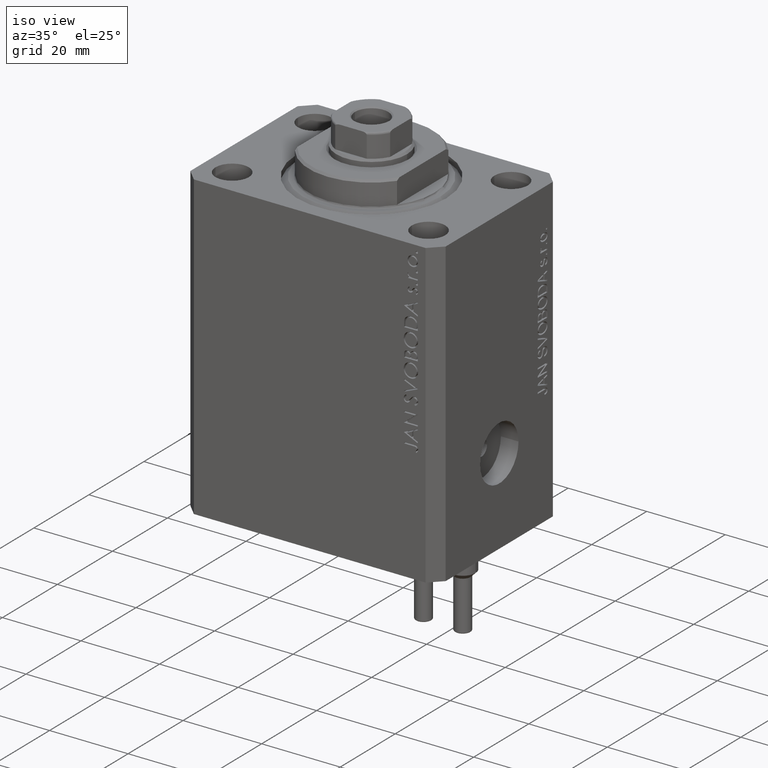
[diagram: clean part render]
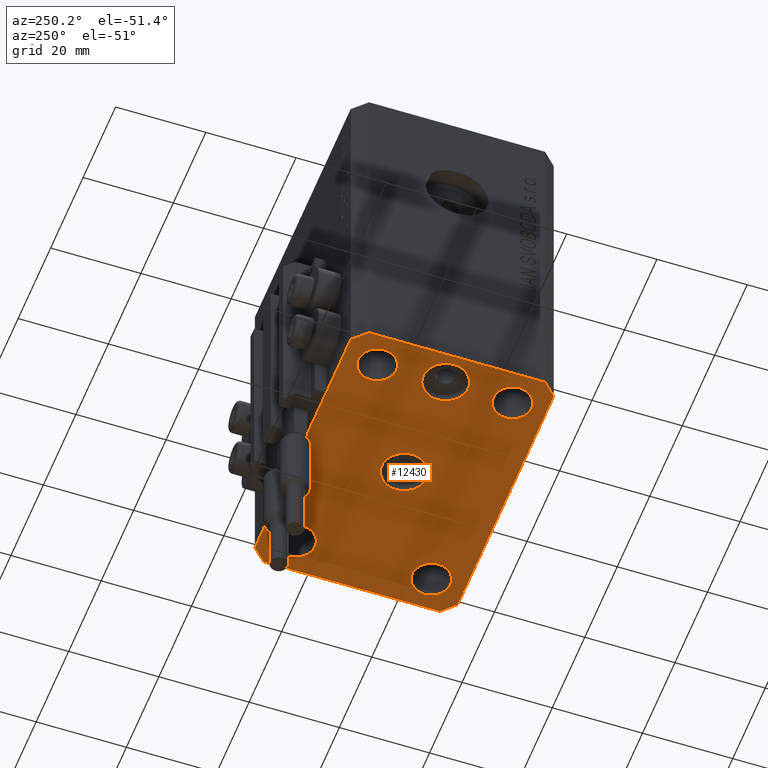
[diagram: tour spotlight — one face highlighted and labeled with its STEP entity id]
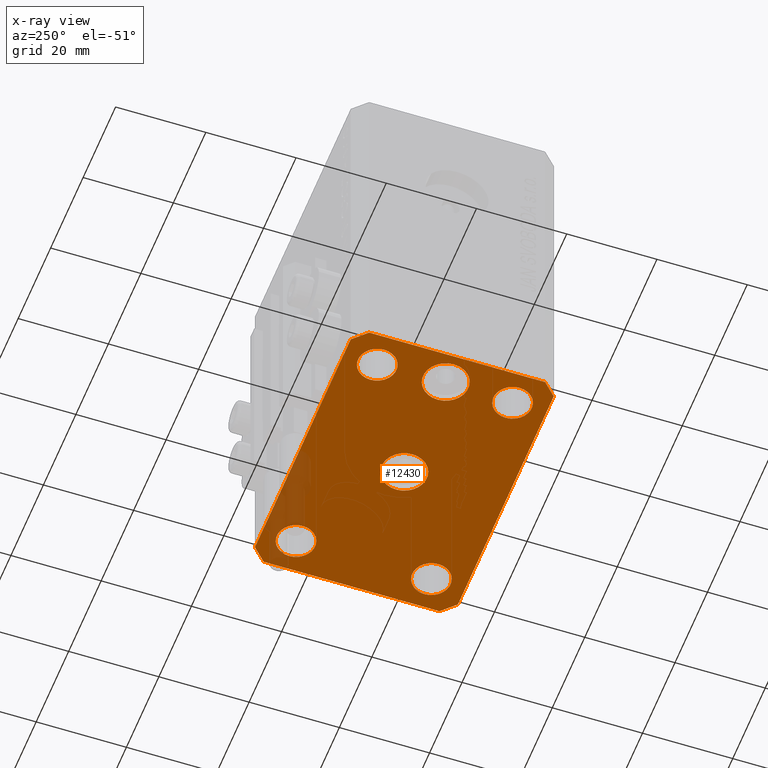
[diagram: x-ray of the same camera — body ghosted, this tour face saturated]
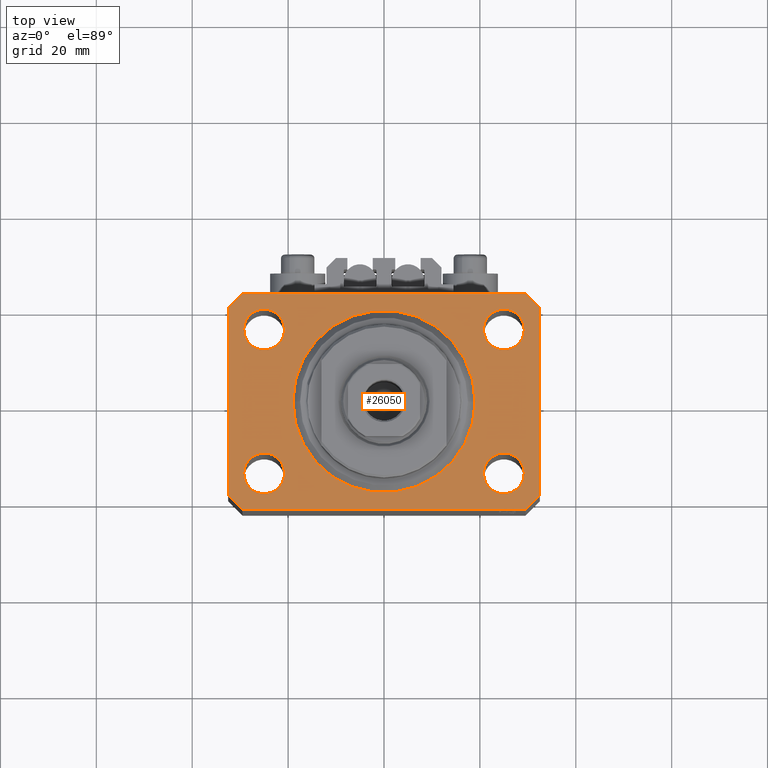
[diagram: tour spotlight — one face highlighted and labeled with its STEP entity id]
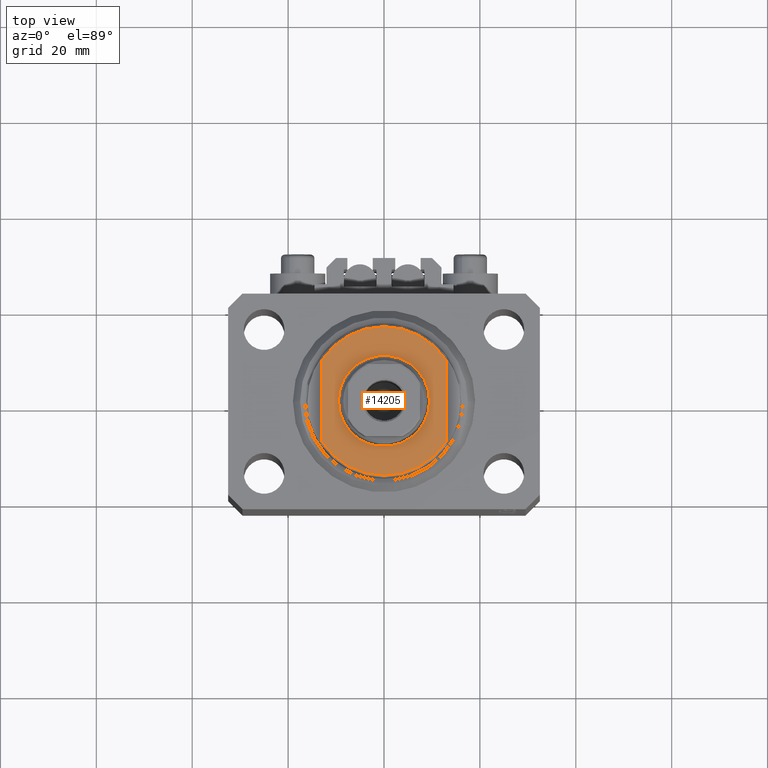
[diagram: tour spotlight — one face highlighted and labeled with its STEP entity id]
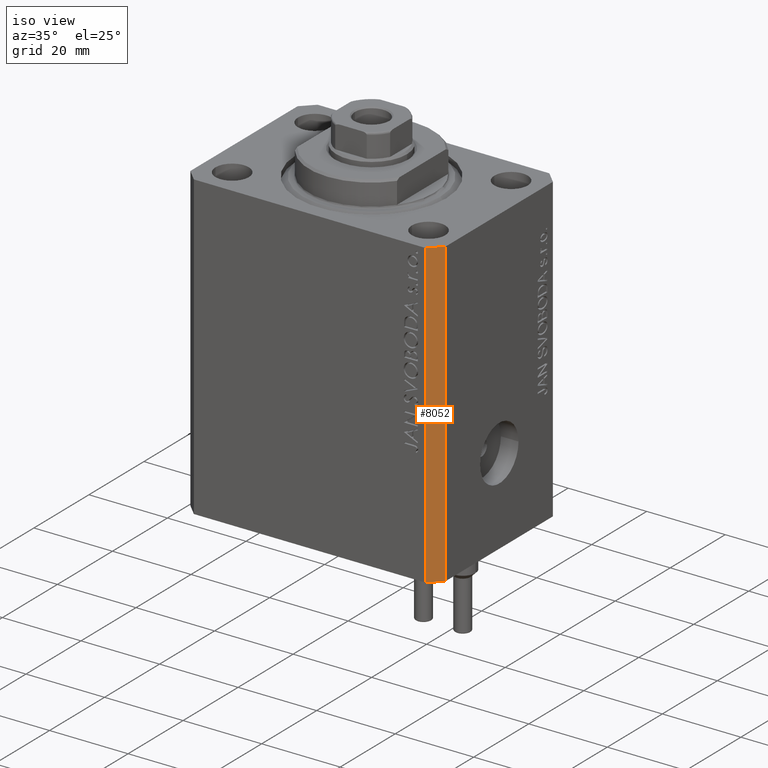
[diagram: tour spotlight — one face highlighted and labeled with its STEP entity id]
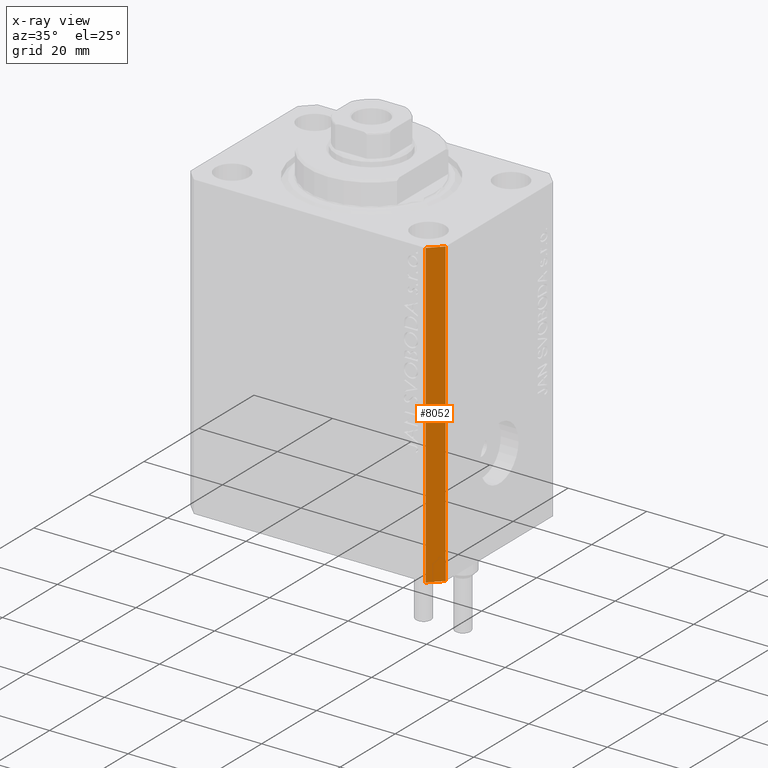
[diagram: x-ray of the same camera — body ghosted, this tour face saturated]
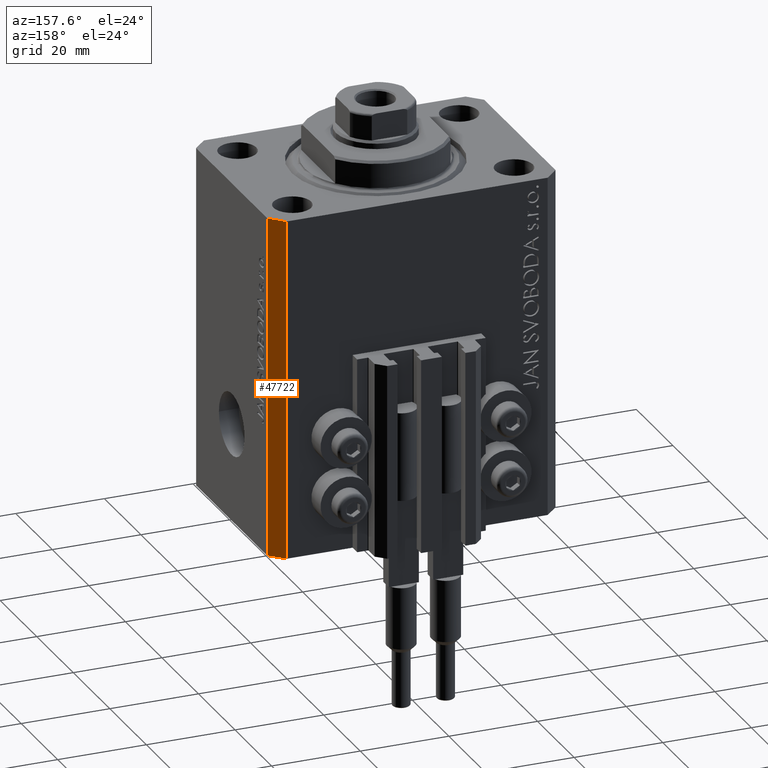
[diagram: tour spotlight — one face highlighted and labeled with its STEP entity id]
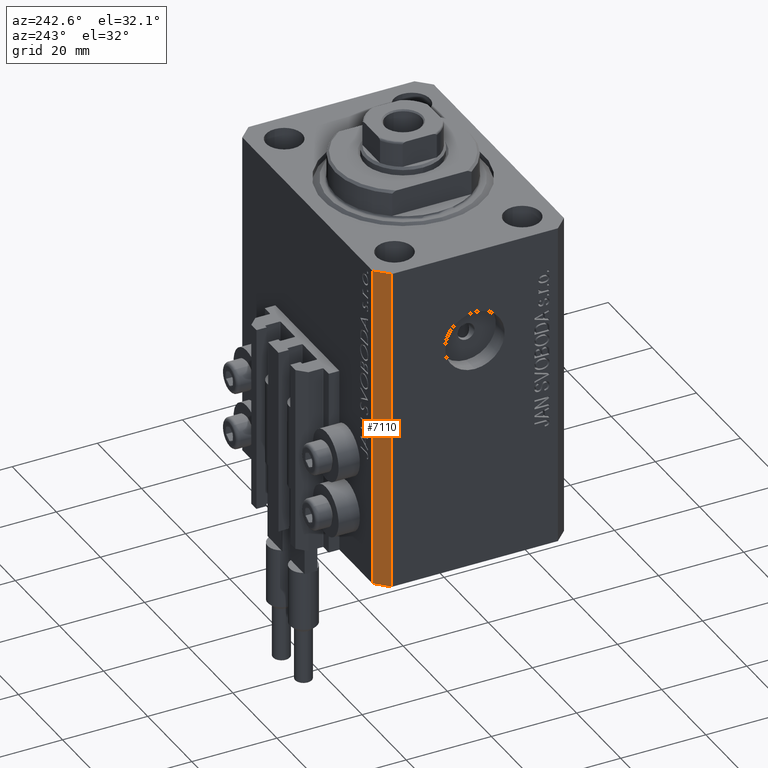
[diagram: tour spotlight — one face highlighted and labeled with its STEP entity id]
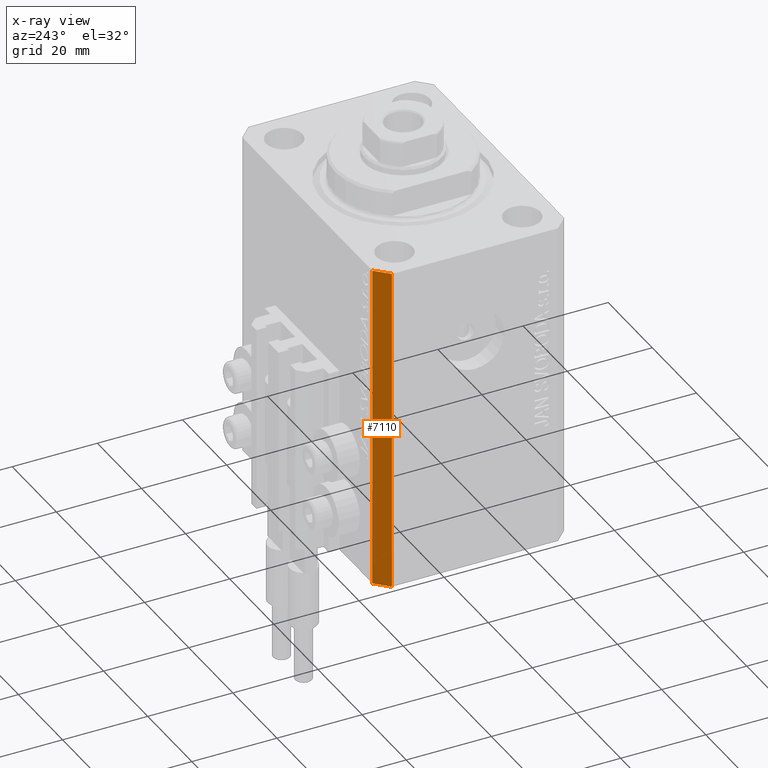
[diagram: x-ray of the same camera — body ghosted, this tour face saturated]
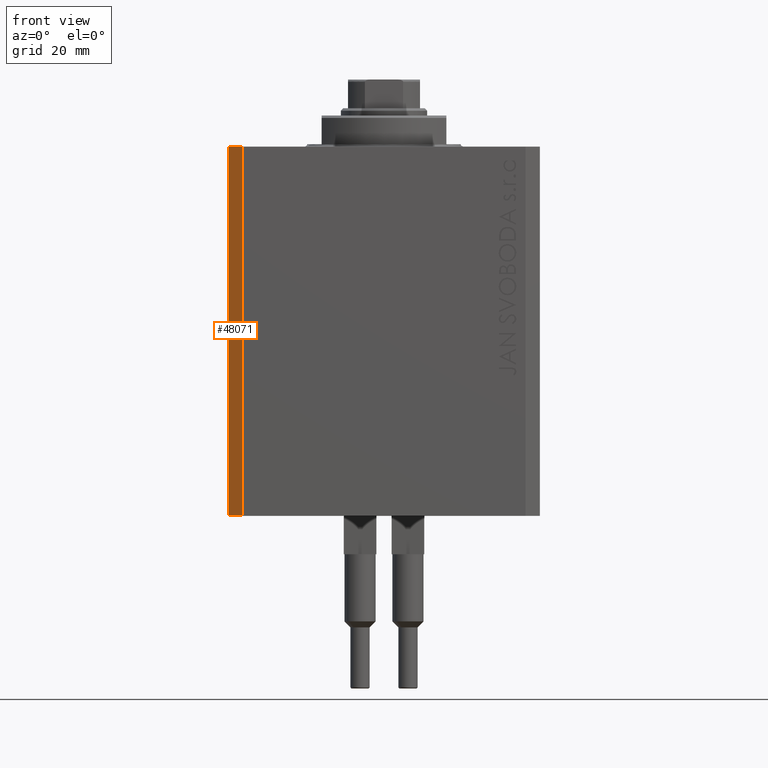
[diagram: tour spotlight — one face highlighted and labeled with its STEP entity id]
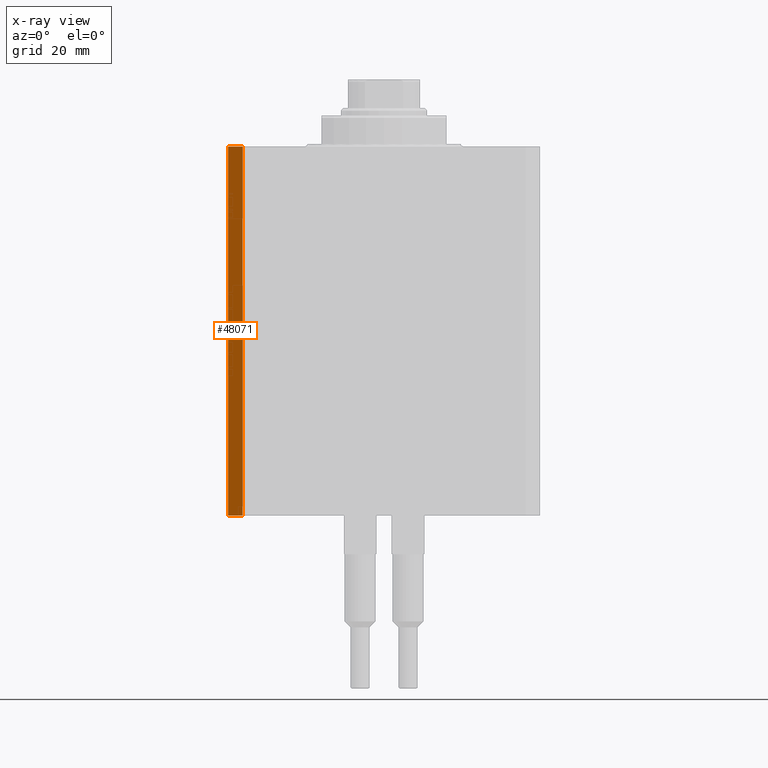
[diagram: x-ray of the same camera — body ghosted, this tour face saturated]
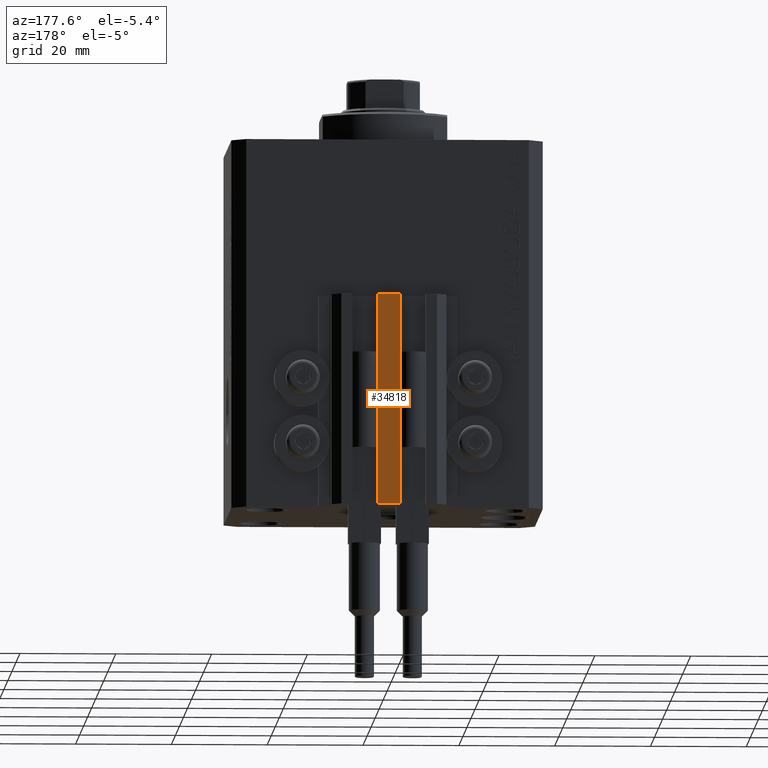
[diagram: tour spotlight — one face highlighted and labeled with its STEP entity id]
A machine part: a face-by-face anatomy tour. The part has 1094 B-rep faces; the first image is the clean iso view, then the 8 largest visible faces are spotlighted one at a time (largest first), each with its STEP entity span.

Face 1 — auxiliary view, entity #12430. An x-ray twin of the same camera follows (body ghosted, this face saturated) — the face is partly hidden behind the body. In plain terms, the highlighted planar face has unit normal (0, 0, 1).
Definition (entity closure, byte-faithful):
#258 = DIRECTION ( 'NONE',  ( -0.7071067811865474617, -0.7071067811865474617, 0.000000000000000000 ) ) ;
#331 = EDGE_CURVE ( 'NONE', #2642, #39354, #42782, .T. ) ;
#501 = DIRECTION ( 'NONE',  ( 1.000000000000000000, 0.000000000000000000, 0.000000000000000000 ) ) ;
#1430 = CARTESIAN_POINT ( 'NONE',  ( 0.000000000000000000, 0.000000000000000000, -77.00000000000000000 ) ) ;
#1583 = EDGE_CURVE ( 'NONE', #11742, #8222, #22103, .T. ) ;
#1600 = CIRCLE ( 'NONE', #35100, 4.249999999957291053 ) ;
#1618 = EDGE_CURVE ( 'NONE', #2704, #1946, #21339, .T. ) ;
#1790 = CARTESIAN_POINT ( 'NONE',  ( 29.49999999999650413, -22.49999999999949196, -77.00000000000000000 ) ) ;
#1946 = VERTEX_POINT ( 'NONE', #11718 ) ;
#2642 = VERTEX_POINT ( 'NONE', #46326 ) ;
#2704 = VERTEX_POINT ( 'NONE', #32372 ) ;
#2874 = ORIENTED_EDGE ( 'NONE', *, *, #5824, .F. ) ;
#2902 = AXIS2_PLACEMENT_3D ( 'NONE', #22172, #44864, #44152 ) ;
#3329 = VERTEX_POINT ( 'NONE', #10085 ) ;
#3403 = ORIENTED_EDGE ( 'NONE', *, *, #43880, .F. ) ;
#3469 = CARTESIAN_POINT ( 'NONE',  ( 24.99999999999999289, -15.00000000000000355, -77.00000000000000000 ) ) ;
#3488 = CARTESIAN_POINT ( 'NONE',  ( -29.25000000004036593, -15.00000000000000355, -77.00000000000000000 ) ) ;
#4000 = LINE ( 'NONE', #41566, #39466 ) ;
#4005 = CARTESIAN_POINT ( 'NONE',  ( -29.49999999999650413, -22.49999999999949907, -77.00000000000000000 ) ) ;
#4539 = FACE_BOUND ( 'NONE', #8298, .T. ) ;
#4984 = CARTESIAN_POINT ( 'NONE',  ( 32.49999999999702993, 19.49999999999945999, -77.00000000000000000 ) ) ;
#5117 = EDGE_CURVE ( 'NONE', #8222, #40233, #45946, .T. ) ;
#5238 = EDGE_CURVE ( 'NONE', #3329, #5459, #40052, .T. ) ;
#5278 = EDGE_CURVE ( 'NONE', #5459, #11742, #22224, .T. ) ;
#5459 = VERTEX_POINT ( 'NONE', #27284 ) ;
#5790 = EDGE_CURVE ( 'NONE', #37325, #37080, #27798, .T. ) ;
#5824 = EDGE_CURVE ( 'NONE', #38099, #3329, #4000, .T. ) ;
#5969 = ORIENTED_EDGE ( 'NONE', *, *, #1583, .F. ) ;
#6103 = CIRCLE ( 'NONE', #16263, 5.000000000000000000 ) ;
#6368 = CARTESIAN_POINT ( 'NONE',  ( 29.49999999999707967, 22.49999999999952038, -77.00000000000000000 ) ) ;
#6669 = CARTESIAN_POINT ( 'NONE',  ( -20.50000000000333955, 6.123233995732674066E-16, -77.00000000000000000 ) ) ;
#6927 = DIRECTION ( 'NONE',  ( -1.000000000000000000, 0.000000000000000000, 0.000000000000000000 ) ) ;
#6941 = DIRECTION ( 'NONE',  ( 1.000000000000000000, 0.000000000000000000, 0.000000000000000000 ) ) ;
#7071 = CIRCLE ( 'NONE', #34346, 4.250000000040370374 ) ;
#7532 = CIRCLE ( 'NONE', #34036, 4.249999999976314058 ) ;
#7722 = FACE_BOUND ( 'NONE', #12204, .T. ) ;
#7962 = DIRECTION ( 'NONE',  ( 1.000000000000000000, 0.000000000000000000, -0.000000000000000000 ) ) ;
#8063 = DIRECTION ( 'NONE',  ( 0.000000000000000000, 0.000000000000000000, -1.000000000000000000 ) ) ;
#8222 = VERTEX_POINT ( 'NONE', #21227 ) ;
#8298 = EDGE_LOOP ( 'NONE', ( #30659, #23869 ) ) ;
#9167 = DIRECTION ( 'NONE',  ( -0.000000000000000000, -0.000000000000000000, -1.000000000000000000 ) ) ;
#10085 = CARTESIAN_POINT ( 'NONE',  ( 29.49999999999707967, 22.49999999999952038, -77.00000000000000000 ) ) ;
#10309 = CARTESIAN_POINT ( 'NONE',  ( -30.49999999999665690, 0.000000000000000000, -77.00000000000000000 ) ) ;
#10316 = DIRECTION ( 'NONE',  ( 1.000000000000000000, 0.000000000000000000, 0.000000000000000000 ) ) ;
#10840 = ORIENTED_EDGE ( 'NONE', *, *, #5117, .F. ) ;
#11487 = CARTESIAN_POINT ( 'NONE',  ( -29.49999999999650413, 22.49999999999949907, -77.00000000000000000 ) ) ;
#11491 = DIRECTION ( 'NONE',  ( -1.000000000000000000, 0.000000000000000000, 0.000000000000000000 ) ) ;
#11546 = AXIS2_PLACEMENT_3D ( 'NONE', #34318, #19424, #7962 ) ;
#11607 = VECTOR ( 'NONE', #46058, 1000.000000000000000 ) ;
#11718 = CARTESIAN_POINT ( 'NONE',  ( 5.000000000000000000, 6.123233995736765296E-16, -77.00000000000000000 ) ) ;
#11742 = VERTEX_POINT ( 'NONE', #24998 ) ;
#12015 = CARTESIAN_POINT ( 'NONE',  ( -32.49999999999650413, -19.49999999999949907, -77.00000000000000000 ) ) ;
#12204 = EDGE_LOOP ( 'NONE', ( #41487, #19639 ) ) ;
#12430 = ADVANCED_FACE ( 'NONE', ( #45537, #45775, #37965, #16241, #4539, #7722, #34776 ), #15995, .F. ) ;
#13124 = CIRCLE ( 'NONE', #24804, 4.249999999957291053 ) ;
#13632 = EDGE_CURVE ( 'NONE', #44379, #15503, #13124, .T. ) ;
#13721 = DIRECTION ( 'NONE',  ( -0.000000000000000000, -0.000000000000000000, -1.000000000000000000 ) ) ;
#13762 = VECTOR ( 'NONE', #258, 1000.000000000000114 ) ;
#14229 = DIRECTION ( 'NONE',  ( 1.000000000000000000, 0.000000000000000000, 0.000000000000000000 ) ) ;
#14554 = VECTOR ( 'NONE', #23953, 1000.000000000000114 ) ;
#14623 = CIRCLE ( 'NONE', #2902, 4.250000000021375790 ) ;
#14738 = CARTESIAN_POINT ( 'NONE',  ( -25.50000000000000000, 0.000000000000000000, -77.00000000000000000 ) ) ;
#15250 = ORIENTED_EDGE ( 'NONE', *, *, #331, .F. ) ;
#15503 = VERTEX_POINT ( 'NONE', #35928 ) ;
#15551 = EDGE_CURVE ( 'NONE', #15503, #44379, #1600, .T. ) ;
#15555 = CARTESIAN_POINT ( 'NONE',  ( 20.75000000002367884, -15.00000000000000355, -77.00000000000000000 ) ) ;
#15641 = DIRECTION ( 'NONE',  ( -0.000000000000000000, -0.000000000000000000, -1.000000000000000000 ) ) ;
#15995 = PLANE ( 'NONE',  #11546 ) ;
#16134 = VERTEX_POINT ( 'NONE', #15555 ) ;
#16241 = FACE_BOUND ( 'NONE', #19300, .T. ) ;
#16261 = EDGE_CURVE ( 'NONE', #17627, #30710, #7071, .T. ) ;
#16263 = AXIS2_PLACEMENT_3D ( 'NONE', #1430, #31194, #42660 ) ;
#16672 = DIRECTION ( 'NONE',  ( 0.7071067811865483499, 0.7071067811865466846, 0.000000000000000000 ) ) ;
#17391 = CARTESIAN_POINT ( 'NONE',  ( 25.00000000000000000, 14.99999999999999289, -77.00000000000000000 ) ) ;
#17627 = VERTEX_POINT ( 'NONE', #40045 ) ;
#18401 = LINE ( 'NONE', #4005, #43652 ) ;
#18883 = DIRECTION ( 'NONE',  ( -0.7071067811865344721, 0.7071067811865606734, 0.000000000000000000 ) ) ;
#19300 = EDGE_LOOP ( 'NONE', ( #44199, #33331 ) ) ;
#19424 = DIRECTION ( 'NONE',  ( 0.000000000000000000, 0.000000000000000000, 1.000000000000000000 ) ) ;
#19639 = ORIENTED_EDGE ( 'NONE', *, *, #5790, .F. ) ;
#20457 = VECTOR ( 'NONE', #16672, 1000.000000000000000 ) ;
#20743 = DIRECTION ( 'NONE',  ( 0.000000000000000000, -1.000000000000000000, 0.000000000000000000 ) ) ;
#20749 = AXIS2_PLACEMENT_3D ( 'NONE', #43558, #32052, #6941 ) ;
#21227 = CARTESIAN_POINT ( 'NONE',  ( -32.49999999999650413, -19.49999999999949907, -77.00000000000000000 ) ) ;
#21339 = CIRCLE ( 'NONE', #47834, 5.000000000000000000 ) ;
#22103 = LINE ( 'NONE', #28548, #24418 ) ;
#22172 = CARTESIAN_POINT ( 'NONE',  ( -25.00000000000000000, 14.99999999999999645, -77.00000000000000000 ) ) ;
#22224 = LINE ( 'NONE', #11487, #13762 ) ;
#22245 = DIRECTION ( 'NONE',  ( -0.000000000000000000, -0.000000000000000000, -1.000000000000000000 ) ) ;
#22381 = AXIS2_PLACEMENT_3D ( 'NONE', #46139, #15641, #30988 ) ;
#22509 = EDGE_LOOP ( 'NONE', ( #33652, #43823 ) ) ;
#22631 = DIRECTION ( 'NONE',  ( -0.000000000000000000, -0.000000000000000000, -1.000000000000000000 ) ) ;
#22948 = VERTEX_POINT ( 'NONE', #10309 ) ;
#23160 = EDGE_CURVE ( 'NONE', #30710, #17627, #41100, .T. ) ;
#23819 = CARTESIAN_POINT ( 'NONE',  ( -24.99999999999999289, -15.00000000000000355, -77.00000000000000000 ) ) ;
#23869 = ORIENTED_EDGE ( 'NONE', *, *, #13632, .F. ) ;
#23890 = EDGE_LOOP ( 'NONE', ( #25834, #2874, #42001, #15250, #3403, #10840, #5969, #41247 ) ) ;
#23953 = DIRECTION ( 'NONE',  ( 0.7071067811865474617, -0.7071067811865474617, 0.000000000000000000 ) ) ;
#24118 = ORIENTED_EDGE ( 'NONE', *, *, #32408, .F. ) ;
#24418 = VECTOR ( 'NONE', #20743, 1000.000000000000000 ) ;
#24579 = CARTESIAN_POINT ( 'NONE',  ( -20.74999999997862687, 14.99999999999999645, -77.00000000000000000 ) ) ;
#24600 = ORIENTED_EDGE ( 'NONE', *, *, #48290, .F. ) ;
#24804 = AXIS2_PLACEMENT_3D ( 'NONE', #43753, #27875, #10316 ) ;
#24998 = CARTESIAN_POINT ( 'NONE',  ( -32.49999999999650413, 19.49999999999949907, -77.00000000000000000 ) ) ;
#25834 = ORIENTED_EDGE ( 'NONE', *, *, #5238, .F. ) ;
#26306 = VERTEX_POINT ( 'NONE', #6669 ) ;
#27064 = EDGE_CURVE ( 'NONE', #37080, #37325, #14623, .T. ) ;
#27284 = CARTESIAN_POINT ( 'NONE',  ( -29.49999999999650413, 22.49999999999949907, -77.00000000000000000 ) ) ;
#27798 = CIRCLE ( 'NONE', #20749, 4.250000000021375790 ) ;
#27875 = DIRECTION ( 'NONE',  ( -0.000000000000000000, -0.000000000000000000, -1.000000000000000000 ) ) ;
#28307 = CARTESIAN_POINT ( 'NONE',  ( -29.25000000002137668, 14.99999999999999645, -77.00000000000000000 ) ) ;
#28367 = EDGE_LOOP ( 'NONE', ( #24600, #24118 ) ) ;
#28548 = CARTESIAN_POINT ( 'NONE',  ( -32.49999999999650413, 19.49999999999949907, -77.00000000000000000 ) ) ;
#28981 = CIRCLE ( 'NONE', #29778, 4.999999999996659561 ) ;
#29709 = CARTESIAN_POINT ( 'NONE',  ( 24.99999999999999289, -15.00000000000000355, -77.00000000000000000 ) ) ;
#29778 = AXIS2_PLACEMENT_3D ( 'NONE', #44217, #8063, #11491 ) ;
#30659 = ORIENTED_EDGE ( 'NONE', *, *, #15551, .F. ) ;
#30710 = VERTEX_POINT ( 'NONE', #3488 ) ;
#30988 = DIRECTION ( 'NONE',  ( 1.000000000000000000, 0.000000000000000000, 0.000000000000000000 ) ) ;
#31194 = DIRECTION ( 'NONE',  ( 0.000000000000000000, 0.000000000000000000, -1.000000000000000000 ) ) ;
#31486 = CARTESIAN_POINT ( 'NONE',  ( 0.000000000000000000, 0.000000000000000000, -77.00000000000000000 ) ) ;
#32052 = DIRECTION ( 'NONE',  ( -0.000000000000000000, -0.000000000000000000, -1.000000000000000000 ) ) ;
#32372 = CARTESIAN_POINT ( 'NONE',  ( -5.000000000000000000, 0.000000000000000000, -77.00000000000000000 ) ) ;
#32408 = EDGE_CURVE ( 'NONE', #26306, #22948, #45641, .T. ) ;
#32415 = VERTEX_POINT ( 'NONE', #43542 ) ;
#33328 = EDGE_CURVE ( 'NONE', #32415, #16134, #37106, .T. ) ;
#33331 = ORIENTED_EDGE ( 'NONE', *, *, #34667, .F. ) ;
#33652 = ORIENTED_EDGE ( 'NONE', *, *, #16261, .F. ) ;
#34036 = AXIS2_PLACEMENT_3D ( 'NONE', #29709, #22631, #44129 ) ;
#34318 = CARTESIAN_POINT ( 'NONE',  ( 0.000000000000000000, 0.000000000000000000, -77.00000000000000000 ) ) ;
#34346 = AXIS2_PLACEMENT_3D ( 'NONE', #23819, #9167, #38700 ) ;
#34576 = LINE ( 'NONE', #37991, #11607 ) ;
#34667 = EDGE_CURVE ( 'NONE', #16134, #32415, #7532, .T. ) ;
#34776 = FACE_OUTER_BOUND ( 'NONE', #23890, .T. ) ;
#34806 = VECTOR ( 'NONE', #42982, 1000.000000000000000 ) ;
#35100 = AXIS2_PLACEMENT_3D ( 'NONE', #17391, #13721, #14229 ) ;
#35928 = CARTESIAN_POINT ( 'NONE',  ( 29.24999999995729283, 14.99999999999999289, -77.00000000000000000 ) ) ;
#36300 = ORIENTED_EDGE ( 'NONE', *, *, #1618, .F. ) ;
#36910 = EDGE_CURVE ( 'NONE', #1946, #2704, #6103, .T. ) ;
#37080 = VERTEX_POINT ( 'NONE', #24579 ) ;
#37106 = CIRCLE ( 'NONE', #47237, 4.249999999976314058 ) ;
#37325 = VERTEX_POINT ( 'NONE', #28307 ) ;
#37965 = FACE_BOUND ( 'NONE', #22509, .T. ) ;
#37991 = CARTESIAN_POINT ( 'NONE',  ( 32.49999999999651124, -19.49999999999949196, -77.00000000000000000 ) ) ;
#38099 = VERTEX_POINT ( 'NONE', #4984 ) ;
#38317 = CARTESIAN_POINT ( 'NONE',  ( 20.75000000004271072, 14.99999999999999289, -77.00000000000000000 ) ) ;
#38700 = DIRECTION ( 'NONE',  ( 1.000000000000000000, 0.000000000000000000, 0.000000000000000000 ) ) ;
#39234 = ORIENTED_EDGE ( 'NONE', *, *, #36910, .F. ) ;
#39299 = DIRECTION ( 'NONE',  ( 0.000000000000000000, 0.000000000000000000, -1.000000000000000000 ) ) ;
#39354 = VERTEX_POINT ( 'NONE', #43422 ) ;
#39466 = VECTOR ( 'NONE', #18883, 1000.000000000000000 ) ;
#40045 = CARTESIAN_POINT ( 'NONE',  ( -20.74999999995962341, -15.00000000000000355, -77.00000000000000000 ) ) ;
#40052 = LINE ( 'NONE', #6368, #34806 ) ;
#40233 = VERTEX_POINT ( 'NONE', #46665 ) ;
#41033 = EDGE_CURVE ( 'NONE', #39354, #38099, #34576, .T. ) ;
#41100 = CIRCLE ( 'NONE', #22381, 4.250000000040370374 ) ;
#41247 = ORIENTED_EDGE ( 'NONE', *, *, #5278, .F. ) ;
#41487 = ORIENTED_EDGE ( 'NONE', *, *, #27064, .F. ) ;
#41566 = CARTESIAN_POINT ( 'NONE',  ( 32.49999999999702993, 19.49999999999945999, -77.00000000000000000 ) ) ;
#42001 = ORIENTED_EDGE ( 'NONE', *, *, #41033, .F. ) ;
#42660 = DIRECTION ( 'NONE',  ( -1.000000000000000000, 0.000000000000000000, 0.000000000000000000 ) ) ;
#42782 = LINE ( 'NONE', #1790, #20457 ) ;
#42982 = DIRECTION ( 'NONE',  ( -1.000000000000000000, -3.528251137580330676E-16, 0.000000000000000000 ) ) ;
#43422 = CARTESIAN_POINT ( 'NONE',  ( 32.49999999999651124, -19.49999999999949196, -77.00000000000000000 ) ) ;
#43542 = CARTESIAN_POINT ( 'NONE',  ( 29.24999999997631051, -15.00000000000000355, -77.00000000000000000 ) ) ;
#43558 = CARTESIAN_POINT ( 'NONE',  ( -25.00000000000000000, 14.99999999999999645, -77.00000000000000000 ) ) ;
#43652 = VECTOR ( 'NONE', #48189, 1000.000000000000000 ) ;
#43753 = CARTESIAN_POINT ( 'NONE',  ( 25.00000000000000000, 14.99999999999999289, -77.00000000000000000 ) ) ;
#43782 = EDGE_LOOP ( 'NONE', ( #36300, #39234 ) ) ;
#43823 = ORIENTED_EDGE ( 'NONE', *, *, #23160, .F. ) ;
#43880 = EDGE_CURVE ( 'NONE', #40233, #2642, #18401, .T. ) ;
#44129 = DIRECTION ( 'NONE',  ( 1.000000000000000000, 0.000000000000000000, 0.000000000000000000 ) ) ;
#44152 = DIRECTION ( 'NONE',  ( 1.000000000000000000, 0.000000000000000000, 0.000000000000000000 ) ) ;
#44199 = ORIENTED_EDGE ( 'NONE', *, *, #33328, .F. ) ;
#44217 = CARTESIAN_POINT ( 'NONE',  ( -25.50000000000000000, 0.000000000000000000, -77.00000000000000000 ) ) ;
#44269 = DIRECTION ( 'NONE',  ( 0.000000000000000000, 0.000000000000000000, -1.000000000000000000 ) ) ;
#44379 = VERTEX_POINT ( 'NONE', #38317 ) ;
#44864 = DIRECTION ( 'NONE',  ( -0.000000000000000000, -0.000000000000000000, -1.000000000000000000 ) ) ;
#45537 = FACE_BOUND ( 'NONE', #43782, .T. ) ;
#45641 = CIRCLE ( 'NONE', #47209, 4.999999999996659561 ) ;
#45775 = FACE_BOUND ( 'NONE', #28367, .T. ) ;
#45946 = LINE ( 'NONE', #12015, #14554 ) ;
#46058 = DIRECTION ( 'NONE',  ( 1.334402673828349134E-14, 1.000000000000000000, 0.000000000000000000 ) ) ;
#46139 = CARTESIAN_POINT ( 'NONE',  ( -24.99999999999999289, -15.00000000000000355, -77.00000000000000000 ) ) ;
#46326 = CARTESIAN_POINT ( 'NONE',  ( 29.49999999999650413, -22.49999999999949196, -77.00000000000000000 ) ) ;
#46392 = DIRECTION ( 'NONE',  ( -1.000000000000000000, 0.000000000000000000, 0.000000000000000000 ) ) ;
#46665 = CARTESIAN_POINT ( 'NONE',  ( -29.49999999999650413, -22.49999999999949907, -77.00000000000000000 ) ) ;
#47209 = AXIS2_PLACEMENT_3D ( 'NONE', #14738, #44269, #6927 ) ;
#47237 = AXIS2_PLACEMENT_3D ( 'NONE', #3469, #22245, #501 ) ;
#47834 = AXIS2_PLACEMENT_3D ( 'NONE', #31486, #39299, #46392 ) ;
#48189 = DIRECTION ( 'NONE',  ( 1.000000000000000000, 1.176083712526788232E-16, 0.000000000000000000 ) ) ;
#48290 = EDGE_CURVE ( 'NONE', #22948, #26306, #28981, .T. ) ;

Face 2 — top view, entity #26050. In plain terms, the highlighted planar face has unit normal (0, 0, 1).
Definition (entity closure, byte-faithful):
#529 = DIRECTION ( 'NONE',  ( 0.7071067811865483499, 0.7071067811865466846, 0.000000000000000000 ) ) ;
#1159 = ORIENTED_EDGE ( 'NONE', *, *, #43514, .F. ) ;
#1164 = EDGE_CURVE ( 'NONE', #41271, #23829, #30664, .T. ) ;
#1395 = DIRECTION ( 'NONE',  ( -0.7071067811865344721, 0.7071067811865606734, 0.000000000000000000 ) ) ;
#2169 = AXIS2_PLACEMENT_3D ( 'NONE', #38734, #12395, #27291 ) ;
#2271 = VERTEX_POINT ( 'NONE', #24539 ) ;
#2321 = ORIENTED_EDGE ( 'NONE', *, *, #6508, .F. ) ;
#2379 = DIRECTION ( 'NONE',  ( 0.000000000000000000, 0.000000000000000000, 1.000000000000000000 ) ) ;
#2419 = CIRCLE ( 'NONE', #20368, 4.249999999957291053 ) ;
#2518 = CARTESIAN_POINT ( 'NONE',  ( -24.99999999999999289, -15.00000000000000355, 0.000000000000000000 ) ) ;
#2864 = CIRCLE ( 'NONE', #42612, 4.249999999976314058 ) ;
#3128 = CARTESIAN_POINT ( 'NONE',  ( -25.00000000000000000, 14.99999999999999645, 0.000000000000000000 ) ) ;
#3141 = CARTESIAN_POINT ( 'NONE',  ( 19.00000000000000000, 0.000000000000000000, 0.000000000000000000 ) ) ;
#3432 = VERTEX_POINT ( 'NONE', #29597 ) ;
#3644 = EDGE_CURVE ( 'NONE', #2271, #12418, #35380, .T. ) ;
#3932 = CARTESIAN_POINT ( 'NONE',  ( -29.49999999999650413, 22.49999999999949907, 0.000000000000000000 ) ) ;
#4233 = VERTEX_POINT ( 'NONE', #43778 ) ;
#4320 = CARTESIAN_POINT ( 'NONE',  ( -32.49999999999650413, -19.49999999999949907, 0.000000000000000000 ) ) ;
#4412 = EDGE_CURVE ( 'NONE', #23829, #47701, #47360, .T. ) ;
#4676 = DIRECTION ( 'NONE',  ( 0.000000000000000000, 0.000000000000000000, 1.000000000000000000 ) ) ;
#4762 = DIRECTION ( 'NONE',  ( 1.000000000000000000, 0.000000000000000000, -0.000000000000000000 ) ) ;
#4765 = ORIENTED_EDGE ( 'NONE', *, *, #39620, .F. ) ;
#4852 = ORIENTED_EDGE ( 'NONE', *, *, #23226, .T. ) ;
#4864 = ORIENTED_EDGE ( 'NONE', *, *, #3644, .T. ) ;
#5187 = CIRCLE ( 'NONE', #19126, 4.250000000021375790 ) ;
#5581 = AXIS2_PLACEMENT_3D ( 'NONE', #41803, #11566, #45472 ) ;
#5600 = DIRECTION ( 'NONE',  ( 0.000000000000000000, -1.000000000000000000, 0.000000000000000000 ) ) ;
#5616 = CARTESIAN_POINT ( 'NONE',  ( 29.24999999997631051, -15.00000000000000355, 0.000000000000000000 ) ) ;
#5624 = EDGE_LOOP ( 'NONE', ( #4765, #36807 ) ) ;
#5726 = EDGE_CURVE ( 'NONE', #9354, #38291, #2864, .T. ) ;
#5784 = DIRECTION ( 'NONE',  ( 1.000000000000000000, 0.000000000000000000, 0.000000000000000000 ) ) ;
#5792 = ORIENTED_EDGE ( 'NONE', *, *, #47803, .T. ) ;
#5982 = VECTOR ( 'NONE', #5600, 1000.000000000000000 ) ;
#5988 = EDGE_LOOP ( 'NONE', ( #39411, #1159 ) ) ;
#6076 = LINE ( 'NONE', #25372, #5982 ) ;
#6486 = FACE_BOUND ( 'NONE', #5988, .T. ) ;
#6508 = EDGE_CURVE ( 'NONE', #40888, #36764, #25523, .T. ) ;
#7035 = CIRCLE ( 'NONE', #5581, 4.250000000021375790 ) ;
#7049 = CARTESIAN_POINT ( 'NONE',  ( -29.25000000002137668, 14.99999999999999645, 0.000000000000000000 ) ) ;
#7273 = VECTOR ( 'NONE', #19200, 1000.000000000000114 ) ;
#7503 = VECTOR ( 'NONE', #17093, 1000.000000000000000 ) ;
#8415 = PLANE ( 'NONE',  #16125 ) ;
#9354 = VERTEX_POINT ( 'NONE', #5616 ) ;
#9750 = ORIENTED_EDGE ( 'NONE', *, *, #26622, .T. ) ;
#9934 = VECTOR ( 'NONE', #11729, 1000.000000000000114 ) ;
#10003 = EDGE_CURVE ( 'NONE', #47701, #3432, #15192, .T. ) ;
#11134 = DIRECTION ( 'NONE',  ( 0.000000000000000000, 0.000000000000000000, 1.000000000000000000 ) ) ;
#11525 = CARTESIAN_POINT ( 'NONE',  ( 0.000000000000000000, 0.000000000000000000, 0.000000000000000000 ) ) ;
#11566 = DIRECTION ( 'NONE',  ( 0.000000000000000000, 0.000000000000000000, 1.000000000000000000 ) ) ;
#11615 = FACE_OUTER_BOUND ( 'NONE', #20817, .T. ) ;
#11729 = DIRECTION ( 'NONE',  ( -0.7071067811865474617, -0.7071067811865474617, 0.000000000000000000 ) ) ;
#11787 = CARTESIAN_POINT ( 'NONE',  ( 20.75000000002367884, -15.00000000000000355, 0.000000000000000000 ) ) ;
#11827 = VERTEX_POINT ( 'NONE', #33771 ) ;
#11869 = CARTESIAN_POINT ( 'NONE',  ( -29.49999999999650413, 22.49999999999949907, 0.000000000000000000 ) ) ;
#12259 = DIRECTION ( 'NONE',  ( 0.000000000000000000, 0.000000000000000000, 1.000000000000000000 ) ) ;
#12395 = DIRECTION ( 'NONE',  ( 0.000000000000000000, 0.000000000000000000, 1.000000000000000000 ) ) ;
#12418 = VERTEX_POINT ( 'NONE', #11869 ) ;
#12589 = EDGE_LOOP ( 'NONE', ( #33255, #31490 ) ) ;
#12636 = CIRCLE ( 'NONE', #15741, 4.250000000040370374 ) ;
#12950 = VERTEX_POINT ( 'NONE', #30040 ) ;
#15180 = VECTOR ( 'NONE', #43200, 1000.000000000000000 ) ;
#15192 = LINE ( 'NONE', #44968, #21719 ) ;
#15513 = FACE_BOUND ( 'NONE', #12589, .T. ) ;
#15741 = AXIS2_PLACEMENT_3D ( 'NONE', #2518, #32035, #21555 ) ;
#16125 = AXIS2_PLACEMENT_3D ( 'NONE', #22593, #11134, #4762 ) ;
#16688 = CARTESIAN_POINT ( 'NONE',  ( -32.49999999999650413, -19.49999999999949907, 0.000000000000000000 ) ) ;
#16960 = CIRCLE ( 'NONE', #44271, 4.249999999957291053 ) ;
#17093 = DIRECTION ( 'NONE',  ( 1.000000000000000000, 1.176083712526788232E-16, 0.000000000000000000 ) ) ;
#17309 = EDGE_CURVE ( 'NONE', #17567, #25775, #12636, .T. ) ;
#17344 = ORIENTED_EDGE ( 'NONE', *, *, #1164, .T. ) ;
#17567 = VERTEX_POINT ( 'NONE', #36636 ) ;
#17819 = CARTESIAN_POINT ( 'NONE',  ( 20.75000000004271072, 14.99999999999999289, 0.000000000000000000 ) ) ;
#17993 = DIRECTION ( 'NONE',  ( 0.000000000000000000, 0.000000000000000000, 1.000000000000000000 ) ) ;
#18230 = DIRECTION ( 'NONE',  ( 1.000000000000000000, 0.000000000000000000, 0.000000000000000000 ) ) ;
#19126 = AXIS2_PLACEMENT_3D ( 'NONE', #3128, #2379, #5784 ) ;
#19200 = DIRECTION ( 'NONE',  ( 0.7071067811865474617, -0.7071067811865474617, 0.000000000000000000 ) ) ;
#20368 = AXIS2_PLACEMENT_3D ( 'NONE', #34473, #12259, #27396 ) ;
#20744 = CARTESIAN_POINT ( 'NONE',  ( -29.49999999999650413, -22.49999999999949907, 0.000000000000000000 ) ) ;
#20817 = EDGE_LOOP ( 'NONE', ( #4864, #9750, #4852, #17344, #44191, #34447, #46359, #5792 ) ) ;
#21555 = DIRECTION ( 'NONE',  ( 1.000000000000000000, 0.000000000000000000, 0.000000000000000000 ) ) ;
#21573 = CARTESIAN_POINT ( 'NONE',  ( 24.99999999999999289, -15.00000000000000355, 0.000000000000000000 ) ) ;
#21719 = VECTOR ( 'NONE', #529, 1000.000000000000000 ) ;
#22593 = CARTESIAN_POINT ( 'NONE',  ( 0.000000000000000000, 0.000000000000000000, 0.000000000000000000 ) ) ;
#22730 = DIRECTION ( 'NONE',  ( 1.334402673828349134E-14, 1.000000000000000000, 0.000000000000000000 ) ) ;
#23226 = EDGE_CURVE ( 'NONE', #11827, #41271, #6076, .T. ) ;
#23829 = VERTEX_POINT ( 'NONE', #36672 ) ;
#24539 = CARTESIAN_POINT ( 'NONE',  ( 29.49999999999707967, 22.49999999999952038, 0.000000000000000000 ) ) ;
#25042 = FACE_BOUND ( 'NONE', #41498, .T. ) ;
#25372 = CARTESIAN_POINT ( 'NONE',  ( -32.49999999999650413, 19.49999999999949907, 0.000000000000000000 ) ) ;
#25523 = CIRCLE ( 'NONE', #41850, 19.00000000000000000 ) ;
#25662 = LINE ( 'NONE', #3932, #9934 ) ;
#25775 = VERTEX_POINT ( 'NONE', #31970 ) ;
#26050 = ADVANCED_FACE ( 'NONE', ( #25042, #39927, #6486, #36014, #15513, #11615 ), #8415, .T. ) ;
#26342 = CARTESIAN_POINT ( 'NONE',  ( -19.00000000000000000, 2.326828918379970970E-15, 0.000000000000000000 ) ) ;
#26404 = AXIS2_PLACEMENT_3D ( 'NONE', #11525, #4676, #37865 ) ;
#26622 = EDGE_CURVE ( 'NONE', #12418, #11827, #25662, .T. ) ;
#26888 = EDGE_LOOP ( 'NONE', ( #33062, #34859 ) ) ;
#27089 = VERTEX_POINT ( 'NONE', #7049 ) ;
#27291 = DIRECTION ( 'NONE',  ( 1.000000000000000000, 0.000000000000000000, 0.000000000000000000 ) ) ;
#27396 = DIRECTION ( 'NONE',  ( 1.000000000000000000, 0.000000000000000000, 0.000000000000000000 ) ) ;
#27686 = CARTESIAN_POINT ( 'NONE',  ( 25.00000000000000000, 14.99999999999999289, 0.000000000000000000 ) ) ;
#28306 = CARTESIAN_POINT ( 'NONE',  ( 29.49999999999707967, 22.49999999999952038, 0.000000000000000000 ) ) ;
#28521 = EDGE_CURVE ( 'NONE', #12950, #35162, #16960, .T. ) ;
#29112 = CARTESIAN_POINT ( 'NONE',  ( -20.74999999997862687, 14.99999999999999645, 0.000000000000000000 ) ) ;
#29597 = CARTESIAN_POINT ( 'NONE',  ( 32.49999999999651124, -19.49999999999949196, 0.000000000000000000 ) ) ;
#30040 = CARTESIAN_POINT ( 'NONE',  ( 29.24999999995729283, 14.99999999999999289, 0.000000000000000000 ) ) ;
#30664 = LINE ( 'NONE', #4320, #7273 ) ;
#31490 = ORIENTED_EDGE ( 'NONE', *, *, #34644, .F. ) ;
#31970 = CARTESIAN_POINT ( 'NONE',  ( -20.74999999995962341, -15.00000000000000355, 0.000000000000000000 ) ) ;
#32035 = DIRECTION ( 'NONE',  ( 0.000000000000000000, 0.000000000000000000, 1.000000000000000000 ) ) ;
#32811 = DIRECTION ( 'NONE',  ( 1.000000000000000000, 0.000000000000000000, 0.000000000000000000 ) ) ;
#33062 = ORIENTED_EDGE ( 'NONE', *, *, #28521, .F. ) ;
#33255 = ORIENTED_EDGE ( 'NONE', *, *, #44055, .F. ) ;
#33297 = EDGE_CURVE ( 'NONE', #3432, #4233, #36903, .T. ) ;
#33771 = CARTESIAN_POINT ( 'NONE',  ( -32.49999999999650413, 19.49999999999949907, 0.000000000000000000 ) ) ;
#34106 = CARTESIAN_POINT ( 'NONE',  ( 32.49999999999702993, 19.49999999999945999, 0.000000000000000000 ) ) ;
#34127 = CIRCLE ( 'NONE', #2169, 4.250000000040370374 ) ;
#34447 = ORIENTED_EDGE ( 'NONE', *, *, #10003, .T. ) ;
#34473 = CARTESIAN_POINT ( 'NONE',  ( 25.00000000000000000, 14.99999999999999289, 0.000000000000000000 ) ) ;
#34591 = CARTESIAN_POINT ( 'NONE',  ( 29.49999999999650413, -22.49999999999949196, 0.000000000000000000 ) ) ;
#34644 = EDGE_CURVE ( 'NONE', #27089, #35000, #5187, .T. ) ;
#34827 = LINE ( 'NONE', #34106, #35159 ) ;
#34859 = ORIENTED_EDGE ( 'NONE', *, *, #48112, .F. ) ;
#35000 = VERTEX_POINT ( 'NONE', #29112 ) ;
#35159 = VECTOR ( 'NONE', #1395, 1000.000000000000000 ) ;
#35162 = VERTEX_POINT ( 'NONE', #17819 ) ;
#35380 = LINE ( 'NONE', #28306, #15180 ) ;
#35509 = VECTOR ( 'NONE', #22730, 1000.000000000000000 ) ;
#36014 = FACE_BOUND ( 'NONE', #26888, .T. ) ;
#36612 = AXIS2_PLACEMENT_3D ( 'NONE', #37494, #17993, #18230 ) ;
#36636 = CARTESIAN_POINT ( 'NONE',  ( -29.25000000004036593, -15.00000000000000355, 0.000000000000000000 ) ) ;
#36672 = CARTESIAN_POINT ( 'NONE',  ( -29.49999999999650413, -22.49999999999949907, 0.000000000000000000 ) ) ;
#36764 = VERTEX_POINT ( 'NONE', #26342 ) ;
#36807 = ORIENTED_EDGE ( 'NONE', *, *, #17309, .F. ) ;
#36839 = DIRECTION ( 'NONE',  ( 1.000000000000000000, 0.000000000000000000, 0.000000000000000000 ) ) ;
#36903 = LINE ( 'NONE', #41517, #35509 ) ;
#37185 = DIRECTION ( 'NONE',  ( 1.000000000000000000, 0.000000000000000000, 0.000000000000000000 ) ) ;
#37292 = EDGE_CURVE ( 'NONE', #36764, #40888, #40459, .T. ) ;
#37494 = CARTESIAN_POINT ( 'NONE',  ( 24.99999999999999289, -15.00000000000000355, 0.000000000000000000 ) ) ;
#37865 = DIRECTION ( 'NONE',  ( 1.000000000000000000, 0.000000000000000000, 0.000000000000000000 ) ) ;
#38291 = VERTEX_POINT ( 'NONE', #11787 ) ;
#38734 = CARTESIAN_POINT ( 'NONE',  ( -24.99999999999999289, -15.00000000000000355, 0.000000000000000000 ) ) ;
#39383 = DIRECTION ( 'NONE',  ( 0.000000000000000000, 0.000000000000000000, 1.000000000000000000 ) ) ;
#39411 = ORIENTED_EDGE ( 'NONE', *, *, #5726, .F. ) ;
#39620 = EDGE_CURVE ( 'NONE', #25775, #17567, #34127, .T. ) ;
#39927 = FACE_BOUND ( 'NONE', #5624, .T. ) ;
#40459 = CIRCLE ( 'NONE', #26404, 19.00000000000000000 ) ;
#40888 = VERTEX_POINT ( 'NONE', #3141 ) ;
#41271 = VERTEX_POINT ( 'NONE', #16688 ) ;
#41281 = CIRCLE ( 'NONE', #36612, 4.249999999976314058 ) ;
#41498 = EDGE_LOOP ( 'NONE', ( #2321, #46839 ) ) ;
#41517 = CARTESIAN_POINT ( 'NONE',  ( 32.49999999999651124, -19.49999999999949196, 0.000000000000000000 ) ) ;
#41803 = CARTESIAN_POINT ( 'NONE',  ( -25.00000000000000000, 14.99999999999999645, 0.000000000000000000 ) ) ;
#41850 = AXIS2_PLACEMENT_3D ( 'NONE', #44651, #44881, #36839 ) ;
#42575 = DIRECTION ( 'NONE',  ( 0.000000000000000000, 0.000000000000000000, 1.000000000000000000 ) ) ;
#42612 = AXIS2_PLACEMENT_3D ( 'NONE', #21573, #39383, #32811 ) ;
#43200 = DIRECTION ( 'NONE',  ( -1.000000000000000000, -3.528251137580330676E-16, 0.000000000000000000 ) ) ;
#43514 = EDGE_CURVE ( 'NONE', #38291, #9354, #41281, .T. ) ;
#43778 = CARTESIAN_POINT ( 'NONE',  ( 32.49999999999702993, 19.49999999999945999, 0.000000000000000000 ) ) ;
#44055 = EDGE_CURVE ( 'NONE', #35000, #27089, #7035, .T. ) ;
#44191 = ORIENTED_EDGE ( 'NONE', *, *, #4412, .T. ) ;
#44271 = AXIS2_PLACEMENT_3D ( 'NONE', #27686, #42575, #37185 ) ;
#44651 = CARTESIAN_POINT ( 'NONE',  ( 0.000000000000000000, 0.000000000000000000, 0.000000000000000000 ) ) ;
#44881 = DIRECTION ( 'NONE',  ( 0.000000000000000000, 0.000000000000000000, 1.000000000000000000 ) ) ;
#44968 = CARTESIAN_POINT ( 'NONE',  ( 29.49999999999650413, -22.49999999999949196, 0.000000000000000000 ) ) ;
#45472 = DIRECTION ( 'NONE',  ( 1.000000000000000000, 0.000000000000000000, 0.000000000000000000 ) ) ;
#46359 = ORIENTED_EDGE ( 'NONE', *, *, #33297, .T. ) ;
#46839 = ORIENTED_EDGE ( 'NONE', *, *, #37292, .F. ) ;
#47360 = LINE ( 'NONE', #20744, #7503 ) ;
#47701 = VERTEX_POINT ( 'NONE', #34591 ) ;
#47803 = EDGE_CURVE ( 'NONE', #4233, #2271, #34827, .T. ) ;
#48112 = EDGE_CURVE ( 'NONE', #35162, #12950, #2419, .T. ) ;

Face 3 — top view, entity #14205. In plain terms, the highlighted planar face has unit normal (0, 0, 1).
Definition (entity closure, byte-faithful):
#395 = PLANE ( 'NONE',  #40563 ) ;
#642 = DIRECTION ( 'NONE',  ( -1.000000000000000000, 0.000000000000000000, -0.000000000000000000 ) ) ;
#2091 = DIRECTION ( 'NONE',  ( 0.000000000000000000, 0.000000000000000000, -1.000000000000000000 ) ) ;
#2866 = CIRCLE ( 'NONE', #33292, 9.500000000000015987 ) ;
#4288 = DIRECTION ( 'NONE',  ( 0.000000000000000000, 0.000000000000000000, -1.000000000000000000 ) ) ;
#5121 = VECTOR ( 'NONE', #24344, 1000.000000000000000 ) ;
#5494 = ORIENTED_EDGE ( 'NONE', *, *, #39107, .T. ) ;
#7461 = CIRCLE ( 'NONE', #21489, 9.500000000000015987 ) ;
#7486 = CARTESIAN_POINT ( 'NONE',  ( 0.000000000000000000, 0.000000000000000000, -6.500000000000000000 ) ) ;
#10984 = CARTESIAN_POINT ( 'NONE',  ( 0.000000000000000000, 0.000000000000000000, -6.500000000000000000 ) ) ;
#11209 = DIRECTION ( 'NONE',  ( -1.000000000000000000, 0.000000000000000000, 0.000000000000000000 ) ) ;
#11732 = CARTESIAN_POINT ( 'NONE',  ( -13.00000000000000000, -8.440971508067139695, -6.500000000000000000 ) ) ;
#12244 = ORIENTED_EDGE ( 'NONE', *, *, #32901, .T. ) ;
#12822 = DIRECTION ( 'NONE',  ( -1.000000000000000000, 0.000000000000000000, 0.000000000000000000 ) ) ;
#12859 = CARTESIAN_POINT ( 'NONE',  ( 13.00000000000000000, 8.440971508067139695, -6.500000000000000000 ) ) ;
#13074 = CIRCLE ( 'NONE', #38025, 15.50000000000003730 ) ;
#13320 = CARTESIAN_POINT ( 'NONE',  ( 0.000000000000000000, 0.000000000000000000, -6.500000000000000000 ) ) ;
#13529 = CARTESIAN_POINT ( 'NONE',  ( 0.000000000000000000, 0.000000000000000000, -6.500000000000000000 ) ) ;
#13899 = FACE_OUTER_BOUND ( 'NONE', #19070, .T. ) ;
#14205 = ADVANCED_FACE ( 'NONE', ( #47337, #13899 ), #395, .T. ) ;
#16316 = LINE ( 'NONE', #46096, #5121 ) ;
#16515 = DIRECTION ( 'NONE',  ( -1.000000000000000000, 0.000000000000000000, 0.000000000000000000 ) ) ;
#18015 = CIRCLE ( 'NONE', #39038, 15.50000000000003730 ) ;
#19070 = EDGE_LOOP ( 'NONE', ( #5494, #12244, #20451, #24375 ) ) ;
#19166 = DIRECTION ( 'NONE',  ( -1.000000000000000000, 0.000000000000000000, 0.000000000000000000 ) ) ;
#20451 = ORIENTED_EDGE ( 'NONE', *, *, #46487, .T. ) ;
#21489 = AXIS2_PLACEMENT_3D ( 'NONE', #13529, #31133, #12822 ) ;
#23418 = EDGE_CURVE ( 'NONE', #42790, #25325, #2866, .T. ) ;
#23428 = CARTESIAN_POINT ( 'NONE',  ( -13.00000000000000000, -43.08131845707602992, -6.500000000000000000 ) ) ;
#24188 = ORIENTED_EDGE ( 'NONE', *, *, #35844, .T. ) ;
#24344 = DIRECTION ( 'NONE',  ( 0.000000000000000000, -1.000000000000000000, -0.000000000000000000 ) ) ;
#24375 = ORIENTED_EDGE ( 'NONE', *, *, #39303, .F. ) ;
#25051 = CARTESIAN_POINT ( 'NONE',  ( 13.00000000000000000, -8.440971508067139695, -6.500000000000000000 ) ) ;
#25325 = VERTEX_POINT ( 'NONE', #46236 ) ;
#27131 = VECTOR ( 'NONE', #31453, 1000.000000000000000 ) ;
#31133 = DIRECTION ( 'NONE',  ( -0.000000000000000000, -0.000000000000000000, 1.000000000000000000 ) ) ;
#31373 = EDGE_LOOP ( 'NONE', ( #48100, #24188 ) ) ;
#31453 = DIRECTION ( 'NONE',  ( -0.000000000000000000, -1.000000000000000000, -0.000000000000000000 ) ) ;
#32491 = CARTESIAN_POINT ( 'NONE',  ( -13.00000000000000000, 8.440971508067139695, -6.500000000000000000 ) ) ;
#32901 = EDGE_CURVE ( 'NONE', #43406, #38941, #16316, .T. ) ;
#33292 = AXIS2_PLACEMENT_3D ( 'NONE', #10984, #44884, #11209 ) ;
#35844 = EDGE_CURVE ( 'NONE', #25325, #42790, #7461, .T. ) ;
#38025 = AXIS2_PLACEMENT_3D ( 'NONE', #42989, #4288, #19166 ) ;
#38140 = CARTESIAN_POINT ( 'NONE',  ( -9.500000000000015987, 0.000000000000000000, -6.500000000000000000 ) ) ;
#38941 = VERTEX_POINT ( 'NONE', #25051 ) ;
#39037 = LINE ( 'NONE', #23428, #27131 ) ;
#39038 = AXIS2_PLACEMENT_3D ( 'NONE', #13320, #2091, #16515 ) ;
#39107 = EDGE_CURVE ( 'NONE', #40277, #43406, #13074, .T. ) ;
#39303 = EDGE_CURVE ( 'NONE', #40277, #42391, #39037, .T. ) ;
#40277 = VERTEX_POINT ( 'NONE', #32491 ) ;
#40563 = AXIS2_PLACEMENT_3D ( 'NONE', #7486, #45314, #642 ) ;
#42391 = VERTEX_POINT ( 'NONE', #11732 ) ;
#42790 = VERTEX_POINT ( 'NONE', #38140 ) ;
#42989 = CARTESIAN_POINT ( 'NONE',  ( 0.000000000000000000, 0.000000000000000000, -6.500000000000000000 ) ) ;
#43406 = VERTEX_POINT ( 'NONE', #12859 ) ;
#44884 = DIRECTION ( 'NONE',  ( -0.000000000000000000, -0.000000000000000000, 1.000000000000000000 ) ) ;
#45314 = DIRECTION ( 'NONE',  ( 0.000000000000000000, 0.000000000000000000, -1.000000000000000000 ) ) ;
#46096 = CARTESIAN_POINT ( 'NONE',  ( 13.00000000000000000, -43.08131845707602992, -6.500000000000000000 ) ) ;
#46236 = CARTESIAN_POINT ( 'NONE',  ( 9.500000000000015987, 1.163414459189987457E-15, -6.500000000000000000 ) ) ;
#46487 = EDGE_CURVE ( 'NONE', #38941, #42391, #18015, .T. ) ;
#47337 = FACE_BOUND ( 'NONE', #31373, .T. ) ;
#48100 = ORIENTED_EDGE ( 'NONE', *, *, #23418, .T. ) ;

Face 4 — iso view, entity #8052. An x-ray twin of the same camera follows (body ghosted, this face saturated) — the face is partly hidden behind the body. In plain terms, the highlighted planar face has unit normal (0.7071, -0.7071, 0).
Definition (entity closure, byte-faithful):
#99 = DIRECTION ( 'NONE',  ( 0.000000000000000000, 0.000000000000000000, 1.000000000000000000 ) ) ;
#331 = EDGE_CURVE ( 'NONE', #2642, #39354, #42782, .T. ) ;
#529 = DIRECTION ( 'NONE',  ( 0.7071067811865483499, 0.7071067811865466846, 0.000000000000000000 ) ) ;
#1790 = CARTESIAN_POINT ( 'NONE',  ( 29.49999999999650413, -22.49999999999949196, -77.00000000000000000 ) ) ;
#2180 = FACE_OUTER_BOUND ( 'NONE', #20731, .T. ) ;
#2642 = VERTEX_POINT ( 'NONE', #46326 ) ;
#3432 = VERTEX_POINT ( 'NONE', #29597 ) ;
#8052 = ADVANCED_FACE ( 'NONE', ( #2180 ), #20497, .T. ) ;
#9054 = ORIENTED_EDGE ( 'NONE', *, *, #19186, .F. ) ;
#9749 = DIRECTION ( 'NONE',  ( 0.7071067811865466846, -0.7071067811865483499, 0.000000000000000000 ) ) ;
#10003 = EDGE_CURVE ( 'NONE', #47701, #3432, #15192, .T. ) ;
#11864 = EDGE_CURVE ( 'NONE', #39354, #3432, #33997, .T. ) ;
#15192 = LINE ( 'NONE', #44968, #21719 ) ;
#16672 = DIRECTION ( 'NONE',  ( 0.7071067811865483499, 0.7071067811865466846, 0.000000000000000000 ) ) ;
#16962 = AXIS2_PLACEMENT_3D ( 'NONE', #43186, #9749, #27814 ) ;
#19186 = EDGE_CURVE ( 'NONE', #2642, #47701, #27559, .T. ) ;
#20457 = VECTOR ( 'NONE', #16672, 1000.000000000000000 ) ;
#20497 = PLANE ( 'NONE',  #16962 ) ;
#20731 = EDGE_LOOP ( 'NONE', ( #39379, #9054, #38339, #46245 ) ) ;
#21719 = VECTOR ( 'NONE', #529, 1000.000000000000000 ) ;
#27559 = LINE ( 'NONE', #30971, #27897 ) ;
#27814 = DIRECTION ( 'NONE',  ( 0.7071067811865483499, 0.7071067811865466846, 0.000000000000000000 ) ) ;
#27897 = VECTOR ( 'NONE', #34881, 1000.000000000000000 ) ;
#29597 = CARTESIAN_POINT ( 'NONE',  ( 32.49999999999651124, -19.49999999999949196, 0.000000000000000000 ) ) ;
#30971 = CARTESIAN_POINT ( 'NONE',  ( 29.49999999999650413, -22.49999999999949196, -77.00000000000000000 ) ) ;
#31861 = VECTOR ( 'NONE', #99, 1000.000000000000000 ) ;
#33535 = CARTESIAN_POINT ( 'NONE',  ( 32.49999999999651124, -19.49999999999949196, -77.00000000000000000 ) ) ;
#33997 = LINE ( 'NONE', #33535, #31861 ) ;
#34591 = CARTESIAN_POINT ( 'NONE',  ( 29.49999999999650413, -22.49999999999949196, 0.000000000000000000 ) ) ;
#34881 = DIRECTION ( 'NONE',  ( 0.000000000000000000, 0.000000000000000000, 1.000000000000000000 ) ) ;
#38339 = ORIENTED_EDGE ( 'NONE', *, *, #331, .T. ) ;
#39354 = VERTEX_POINT ( 'NONE', #43422 ) ;
#39379 = ORIENTED_EDGE ( 'NONE', *, *, #10003, .F. ) ;
#42782 = LINE ( 'NONE', #1790, #20457 ) ;
#43186 = CARTESIAN_POINT ( 'NONE',  ( 29.49999999999650413, -22.49999999999949196, -77.00000000000000000 ) ) ;
#43422 = CARTESIAN_POINT ( 'NONE',  ( 32.49999999999651124, -19.49999999999949196, -77.00000000000000000 ) ) ;
#44968 = CARTESIAN_POINT ( 'NONE',  ( 29.49999999999650413, -22.49999999999949196, 0.000000000000000000 ) ) ;
#46245 = ORIENTED_EDGE ( 'NONE', *, *, #11864, .T. ) ;
#46326 = CARTESIAN_POINT ( 'NONE',  ( 29.49999999999650413, -22.49999999999949196, -77.00000000000000000 ) ) ;
#47701 = VERTEX_POINT ( 'NONE', #34591 ) ;

Face 5 — auxiliary view, entity #47722. In plain terms, the highlighted planar face has unit normal (0.7071, 0.7071, 0).
Definition (entity closure, byte-faithful):
#734 = LINE ( 'NONE', #27090, #3844 ) ;
#1395 = DIRECTION ( 'NONE',  ( -0.7071067811865344721, 0.7071067811865606734, 0.000000000000000000 ) ) ;
#2271 = VERTEX_POINT ( 'NONE', #24539 ) ;
#3329 = VERTEX_POINT ( 'NONE', #10085 ) ;
#3844 = VECTOR ( 'NONE', #30260, 1000.000000000000000 ) ;
#4000 = LINE ( 'NONE', #41566, #39466 ) ;
#4233 = VERTEX_POINT ( 'NONE', #43778 ) ;
#4984 = CARTESIAN_POINT ( 'NONE',  ( 32.49999999999702993, 19.49999999999945999, -77.00000000000000000 ) ) ;
#5824 = EDGE_CURVE ( 'NONE', #38099, #3329, #4000, .T. ) ;
#8483 = CARTESIAN_POINT ( 'NONE',  ( 32.49999999999702993, 19.49999999999945999, -77.00000000000000000 ) ) ;
#10085 = CARTESIAN_POINT ( 'NONE',  ( 29.49999999999707967, 22.49999999999952038, -77.00000000000000000 ) ) ;
#11679 = DIRECTION ( 'NONE',  ( -0.7071067811865344721, 0.7071067811865606734, 0.000000000000000000 ) ) ;
#12224 = CARTESIAN_POINT ( 'NONE',  ( 29.49999999999707967, 22.49999999999952038, -77.00000000000000000 ) ) ;
#14158 = ORIENTED_EDGE ( 'NONE', *, *, #47803, .F. ) ;
#18787 = ORIENTED_EDGE ( 'NONE', *, *, #42417, .F. ) ;
#18883 = DIRECTION ( 'NONE',  ( -0.7071067811865344721, 0.7071067811865606734, 0.000000000000000000 ) ) ;
#20413 = EDGE_LOOP ( 'NONE', ( #14158, #18787, #41952, #32312 ) ) ;
#22264 = VECTOR ( 'NONE', #23924, 1000.000000000000000 ) ;
#23842 = DIRECTION ( 'NONE',  ( 0.7071067811865606734, 0.7071067811865344721, -0.000000000000000000 ) ) ;
#23924 = DIRECTION ( 'NONE',  ( 0.000000000000000000, 0.000000000000000000, 1.000000000000000000 ) ) ;
#24171 = LINE ( 'NONE', #12224, #22264 ) ;
#24539 = CARTESIAN_POINT ( 'NONE',  ( 29.49999999999707967, 22.49999999999952038, 0.000000000000000000 ) ) ;
#26607 = AXIS2_PLACEMENT_3D ( 'NONE', #8483, #23842, #11679 ) ;
#27090 = CARTESIAN_POINT ( 'NONE',  ( 32.49999999999702993, 19.49999999999945999, -77.00000000000000000 ) ) ;
#27513 = FACE_OUTER_BOUND ( 'NONE', #20413, .T. ) ;
#30206 = PLANE ( 'NONE',  #26607 ) ;
#30260 = DIRECTION ( 'NONE',  ( 0.000000000000000000, 0.000000000000000000, 1.000000000000000000 ) ) ;
#32312 = ORIENTED_EDGE ( 'NONE', *, *, #36415, .T. ) ;
#34106 = CARTESIAN_POINT ( 'NONE',  ( 32.49999999999702993, 19.49999999999945999, 0.000000000000000000 ) ) ;
#34827 = LINE ( 'NONE', #34106, #35159 ) ;
#35159 = VECTOR ( 'NONE', #1395, 1000.000000000000000 ) ;
#36415 = EDGE_CURVE ( 'NONE', #3329, #2271, #24171, .T. ) ;
#38099 = VERTEX_POINT ( 'NONE', #4984 ) ;
#39466 = VECTOR ( 'NONE', #18883, 1000.000000000000000 ) ;
#41566 = CARTESIAN_POINT ( 'NONE',  ( 32.49999999999702993, 19.49999999999945999, -77.00000000000000000 ) ) ;
#41952 = ORIENTED_EDGE ( 'NONE', *, *, #5824, .T. ) ;
#42417 = EDGE_CURVE ( 'NONE', #38099, #4233, #734, .T. ) ;
#43778 = CARTESIAN_POINT ( 'NONE',  ( 32.49999999999702993, 19.49999999999945999, 0.000000000000000000 ) ) ;
#47722 = ADVANCED_FACE ( 'NONE', ( #27513 ), #30206, .T. ) ;
#47803 = EDGE_CURVE ( 'NONE', #4233, #2271, #34827, .T. ) ;

Face 6 — auxiliary view, entity #7110. An x-ray twin of the same camera follows (body ghosted, this face saturated) — the face is partly hidden behind the body. In plain terms, the highlighted planar face has unit normal (-0.7071, 0.7071, 0).
Definition (entity closure, byte-faithful):
#258 = DIRECTION ( 'NONE',  ( -0.7071067811865474617, -0.7071067811865474617, 0.000000000000000000 ) ) ;
#985 = FACE_OUTER_BOUND ( 'NONE', #34734, .T. ) ;
#1478 = DIRECTION ( 'NONE',  ( -0.7071067811865474617, -0.7071067811865474617, 0.000000000000000000 ) ) ;
#3792 = VECTOR ( 'NONE', #42793, 1000.000000000000000 ) ;
#3932 = CARTESIAN_POINT ( 'NONE',  ( -29.49999999999650413, 22.49999999999949907, 0.000000000000000000 ) ) ;
#5278 = EDGE_CURVE ( 'NONE', #5459, #11742, #22224, .T. ) ;
#5459 = VERTEX_POINT ( 'NONE', #27284 ) ;
#5996 = ORIENTED_EDGE ( 'NONE', *, *, #18853, .T. ) ;
#6924 = DIRECTION ( 'NONE',  ( 0.000000000000000000, 0.000000000000000000, 1.000000000000000000 ) ) ;
#7110 = ADVANCED_FACE ( 'NONE', ( #985 ), #15878, .T. ) ;
#9934 = VECTOR ( 'NONE', #11729, 1000.000000000000114 ) ;
#11487 = CARTESIAN_POINT ( 'NONE',  ( -29.49999999999650413, 22.49999999999949907, -77.00000000000000000 ) ) ;
#11729 = DIRECTION ( 'NONE',  ( -0.7071067811865474617, -0.7071067811865474617, 0.000000000000000000 ) ) ;
#11742 = VERTEX_POINT ( 'NONE', #24998 ) ;
#11827 = VERTEX_POINT ( 'NONE', #33771 ) ;
#11869 = CARTESIAN_POINT ( 'NONE',  ( -29.49999999999650413, 22.49999999999949907, 0.000000000000000000 ) ) ;
#12418 = VERTEX_POINT ( 'NONE', #11869 ) ;
#13762 = VECTOR ( 'NONE', #258, 1000.000000000000114 ) ;
#14735 = CARTESIAN_POINT ( 'NONE',  ( -32.49999999999650413, 19.49999999999949907, -77.00000000000000000 ) ) ;
#15878 = PLANE ( 'NONE',  #16929 ) ;
#16929 = AXIS2_PLACEMENT_3D ( 'NONE', #34900, #30749, #1478 ) ;
#18853 = EDGE_CURVE ( 'NONE', #11742, #11827, #48166, .T. ) ;
#22224 = LINE ( 'NONE', #11487, #13762 ) ;
#22681 = ORIENTED_EDGE ( 'NONE', *, *, #31481, .F. ) ;
#24998 = CARTESIAN_POINT ( 'NONE',  ( -32.49999999999650413, 19.49999999999949907, -77.00000000000000000 ) ) ;
#25662 = LINE ( 'NONE', #3932, #9934 ) ;
#26415 = ORIENTED_EDGE ( 'NONE', *, *, #26622, .F. ) ;
#26622 = EDGE_CURVE ( 'NONE', #12418, #11827, #25662, .T. ) ;
#27284 = CARTESIAN_POINT ( 'NONE',  ( -29.49999999999650413, 22.49999999999949907, -77.00000000000000000 ) ) ;
#27901 = CARTESIAN_POINT ( 'NONE',  ( -29.49999999999650413, 22.49999999999949907, -77.00000000000000000 ) ) ;
#28138 = LINE ( 'NONE', #27901, #3792 ) ;
#30749 = DIRECTION ( 'NONE',  ( -0.7071067811865475727, 0.7071067811865475727, 0.000000000000000000 ) ) ;
#31481 = EDGE_CURVE ( 'NONE', #5459, #12418, #28138, .T. ) ;
#33771 = CARTESIAN_POINT ( 'NONE',  ( -32.49999999999650413, 19.49999999999949907, 0.000000000000000000 ) ) ;
#34734 = EDGE_LOOP ( 'NONE', ( #26415, #22681, #43799, #5996 ) ) ;
#34900 = CARTESIAN_POINT ( 'NONE',  ( -29.49999999999650413, 22.49999999999949907, -77.00000000000000000 ) ) ;
#42793 = DIRECTION ( 'NONE',  ( 0.000000000000000000, 0.000000000000000000, 1.000000000000000000 ) ) ;
#43799 = ORIENTED_EDGE ( 'NONE', *, *, #5278, .T. ) ;
#44307 = VECTOR ( 'NONE', #6924, 1000.000000000000000 ) ;
#48166 = LINE ( 'NONE', #14735, #44307 ) ;

Face 7 — front view, entity #48071. An x-ray twin of the same camera follows (body ghosted, this face saturated) — the face is partly hidden behind the body. In plain terms, the highlighted planar face has unit normal (-0.7071, -0.7071, 0).
Definition (entity closure, byte-faithful):
#154 = CARTESIAN_POINT ( 'NONE',  ( -32.49999999999650413, -19.49999999999949907, -77.00000000000000000 ) ) ;
#1164 = EDGE_CURVE ( 'NONE', #41271, #23829, #30664, .T. ) ;
#1816 = EDGE_LOOP ( 'NONE', ( #38711, #14125, #44062, #17813 ) ) ;
#4320 = CARTESIAN_POINT ( 'NONE',  ( -32.49999999999650413, -19.49999999999949907, 0.000000000000000000 ) ) ;
#5117 = EDGE_CURVE ( 'NONE', #8222, #40233, #45946, .T. ) ;
#7273 = VECTOR ( 'NONE', #19200, 1000.000000000000114 ) ;
#8222 = VERTEX_POINT ( 'NONE', #21227 ) ;
#12015 = CARTESIAN_POINT ( 'NONE',  ( -32.49999999999650413, -19.49999999999949907, -77.00000000000000000 ) ) ;
#12510 = FACE_OUTER_BOUND ( 'NONE', #1816, .T. ) ;
#14125 = ORIENTED_EDGE ( 'NONE', *, *, #20942, .F. ) ;
#14554 = VECTOR ( 'NONE', #23953, 1000.000000000000114 ) ;
#16688 = CARTESIAN_POINT ( 'NONE',  ( -32.49999999999650413, -19.49999999999949907, 0.000000000000000000 ) ) ;
#17813 = ORIENTED_EDGE ( 'NONE', *, *, #48209, .T. ) ;
#19200 = DIRECTION ( 'NONE',  ( 0.7071067811865474617, -0.7071067811865474617, 0.000000000000000000 ) ) ;
#19421 = DIRECTION ( 'NONE',  ( 0.000000000000000000, 0.000000000000000000, 1.000000000000000000 ) ) ;
#20942 = EDGE_CURVE ( 'NONE', #8222, #41271, #30163, .T. ) ;
#21227 = CARTESIAN_POINT ( 'NONE',  ( -32.49999999999650413, -19.49999999999949907, -77.00000000000000000 ) ) ;
#23248 = DIRECTION ( 'NONE',  ( -0.7071067811865475727, -0.7071067811865475727, 0.000000000000000000 ) ) ;
#23461 = AXIS2_PLACEMENT_3D ( 'NONE', #31737, #23248, #38134 ) ;
#23829 = VERTEX_POINT ( 'NONE', #36672 ) ;
#23953 = DIRECTION ( 'NONE',  ( 0.7071067811865474617, -0.7071067811865474617, 0.000000000000000000 ) ) ;
#30163 = LINE ( 'NONE', #154, #42776 ) ;
#30664 = LINE ( 'NONE', #4320, #7273 ) ;
#31737 = CARTESIAN_POINT ( 'NONE',  ( -32.49999999999650413, -19.49999999999949907, -77.00000000000000000 ) ) ;
#32848 = VECTOR ( 'NONE', #35894, 1000.000000000000000 ) ;
#35894 = DIRECTION ( 'NONE',  ( 0.000000000000000000, 0.000000000000000000, 1.000000000000000000 ) ) ;
#36672 = CARTESIAN_POINT ( 'NONE',  ( -29.49999999999650413, -22.49999999999949907, 0.000000000000000000 ) ) ;
#38134 = DIRECTION ( 'NONE',  ( 0.7071067811865474617, -0.7071067811865474617, 0.000000000000000000 ) ) ;
#38711 = ORIENTED_EDGE ( 'NONE', *, *, #1164, .F. ) ;
#40233 = VERTEX_POINT ( 'NONE', #46665 ) ;
#41271 = VERTEX_POINT ( 'NONE', #16688 ) ;
#42275 = PLANE ( 'NONE',  #23461 ) ;
#42776 = VECTOR ( 'NONE', #19421, 1000.000000000000000 ) ;
#43229 = LINE ( 'NONE', #47137, #32848 ) ;
#44062 = ORIENTED_EDGE ( 'NONE', *, *, #5117, .T. ) ;
#45946 = LINE ( 'NONE', #12015, #14554 ) ;
#46665 = CARTESIAN_POINT ( 'NONE',  ( -29.49999999999650413, -22.49999999999949907, -77.00000000000000000 ) ) ;
#47137 = CARTESIAN_POINT ( 'NONE',  ( -29.49999999999650413, -22.49999999999949907, -77.00000000000000000 ) ) ;
#48071 = ADVANCED_FACE ( 'NONE', ( #12510 ), #42275, .T. ) ;
#48209 = EDGE_CURVE ( 'NONE', #40233, #23829, #43229, .T. ) ;

Face 8 — auxiliary view, entity #34818. In plain terms, the highlighted planar face has unit normal (0, -1, 0).
Definition (entity closure, byte-faithful):
#55 = EDGE_LOOP ( 'NONE', ( #28640, #10807, #24722, #4745 ) ) ;
#2999 = EDGE_CURVE ( 'NONE', #26423, #10534, #33792, .T. ) ;
#4745 = ORIENTED_EDGE ( 'NONE', *, *, #47629, .T. ) ;
#7262 = CARTESIAN_POINT ( 'NONE',  ( -2.350000000000003197, 30.49999999999949907, -77.00000000000000000 ) ) ;
#8559 = LINE ( 'NONE', #37617, #33550 ) ;
#10534 = VERTEX_POINT ( 'NONE', #24309 ) ;
#10807 = ORIENTED_EDGE ( 'NONE', *, *, #44360, .F. ) ;
#11169 = DIRECTION ( 'NONE',  ( 0.000000000000000000, -1.000000000000000000, 0.000000000000000000 ) ) ;
#11309 = CARTESIAN_POINT ( 'NONE',  ( -2.350000000000003197, 30.49999999999949907, -77.00000000000000000 ) ) ;
#13753 = AXIS2_PLACEMENT_3D ( 'NONE', #7262, #11169, #18731 ) ;
#15395 = LINE ( 'NONE', #26858, #20260 ) ;
#18515 = LINE ( 'NONE', #37301, #25857 ) ;
#18731 = DIRECTION ( 'NONE',  ( 0.000000000000000000, -0.000000000000000000, -1.000000000000000000 ) ) ;
#18960 = FACE_OUTER_BOUND ( 'NONE', #55, .T. ) ;
#20260 = VECTOR ( 'NONE', #44935, 1000.000000000000000 ) ;
#22569 = DIRECTION ( 'NONE',  ( 1.000000000000000000, 0.000000000000000000, 0.000000000000000000 ) ) ;
#24309 = CARTESIAN_POINT ( 'NONE',  ( 2.349999999999999645, 30.49999999999949907, -77.00000000000000000 ) ) ;
#24722 = ORIENTED_EDGE ( 'NONE', *, *, #2999, .F. ) ;
#25857 = VECTOR ( 'NONE', #40494, 1000.000000000000000 ) ;
#26423 = VERTEX_POINT ( 'NONE', #11309 ) ;
#26858 = CARTESIAN_POINT ( 'NONE',  ( 2.349999999999999645, 30.49999999999949907, -77.00000000000000000 ) ) ;
#28640 = ORIENTED_EDGE ( 'NONE', *, *, #45225, .T. ) ;
#30595 = CARTESIAN_POINT ( 'NONE',  ( -2.350000000000003197, 30.49999999999949907, -77.00000000000000000 ) ) ;
#33550 = VECTOR ( 'NONE', #45651, 1000.000000000000000 ) ;
#33792 = LINE ( 'NONE', #30595, #46349 ) ;
#34818 = ADVANCED_FACE ( 'NONE', ( #18960 ), #48279, .F. ) ;
#37301 = CARTESIAN_POINT ( 'NONE',  ( -2.350000000000003197, 30.49999999999949907, -77.00000000000000000 ) ) ;
#37617 = CARTESIAN_POINT ( 'NONE',  ( -2.350000000000003197, 30.49999999999949907, -33.00000000000000000 ) ) ;
#37792 = CARTESIAN_POINT ( 'NONE',  ( 2.349999999999999645, 30.49999999999949907, -33.00000000000000000 ) ) ;
#40494 = DIRECTION ( 'NONE',  ( 0.000000000000000000, 0.000000000000000000, 1.000000000000000000 ) ) ;
#41367 = VERTEX_POINT ( 'NONE', #46237 ) ;
#44360 = EDGE_CURVE ( 'NONE', #10534, #45503, #15395, .T. ) ;
#44935 = DIRECTION ( 'NONE',  ( 0.000000000000000000, 0.000000000000000000, 1.000000000000000000 ) ) ;
#45225 = EDGE_CURVE ( 'NONE', #41367, #45503, #8559, .T. ) ;
#45503 = VERTEX_POINT ( 'NONE', #37792 ) ;
#45651 = DIRECTION ( 'NONE',  ( 1.000000000000000000, 0.000000000000000000, 0.000000000000000000 ) ) ;
#46237 = CARTESIAN_POINT ( 'NONE',  ( -2.350000000000003197, 30.49999999999949907, -33.00000000000000000 ) ) ;
#46349 = VECTOR ( 'NONE', #22569, 1000.000000000000000 ) ;
#47629 = EDGE_CURVE ( 'NONE', #26423, #41367, #18515, .T. ) ;
#48279 = PLANE ( 'NONE',  #13753 ) ;